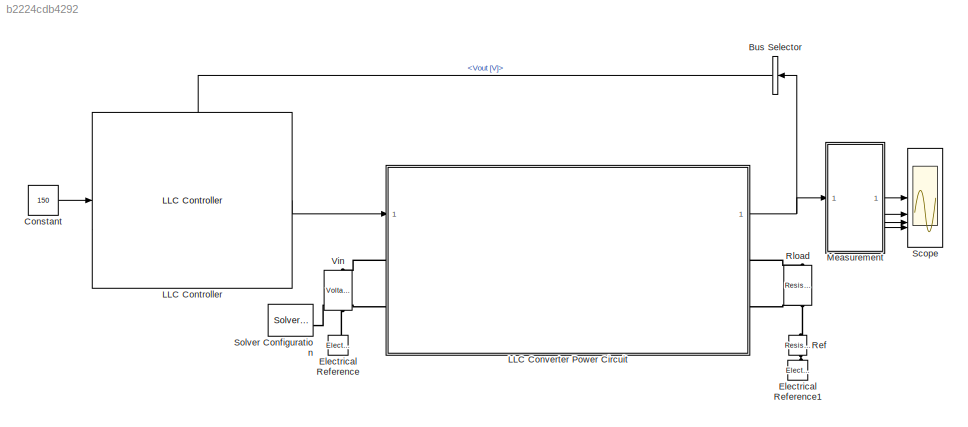
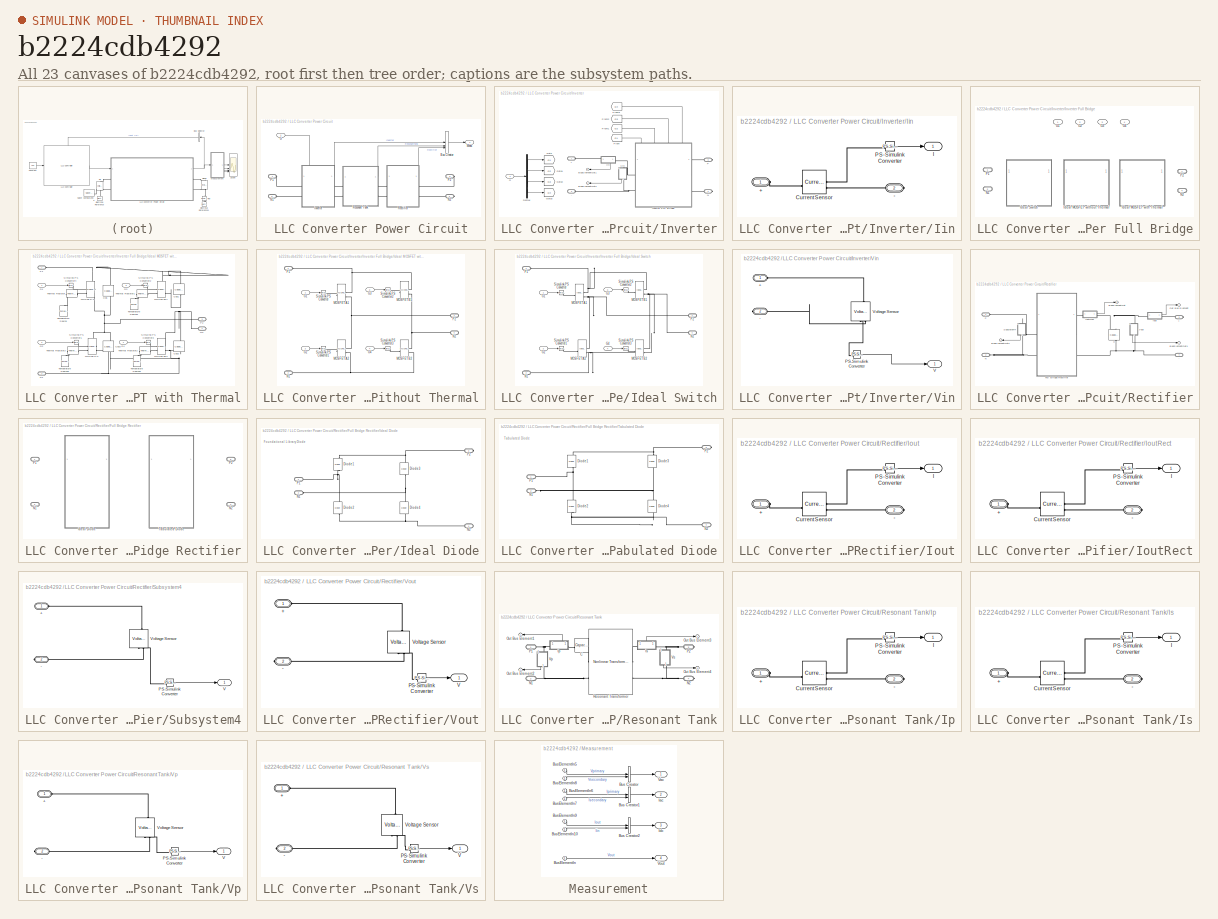
[diagram: thumbnail index - all 23 canvases of the model, root first then tree order]
MODEL slx_b2224cdb4292
KIND model
CONFIG AbsTol = 1e-3
CONFIG EnableMultiTasking = off
CONFIG FixedStep = Ts
CONFIG MaxStep = auto
CONFIG MinStep = auto
CONFIG PreLoadFcn = % Parameterize the model\n\nif ~exist('LLCDesign', 'var')\nLLCConverterDefaultInputParameters;\nend\n
CONFIG RelTol = 1e-3
CONFIG SampleTimeConstraint = Unconstrained
CONFIG SolverName = VariableStepAuto
CONFIG StartTime = 0.0
CONFIG StopTime = simulationTime
BLOCK [BusSelector] Bus Selector
  NameLocation = top
  OutputSignals = Rectifier.Vout [V]
BLOCK [Constant] Constant
  Value = 150
BLOCK [Reference] Electrical Reference  REF=fl_lib/Electrical/Electrical Elements/Electrical Reference
  NameLocation = right
  SourceBlock = fl_lib/Electrical/Electrical Elements/Electrical Reference
  SourceType = Electrical Reference
BLOCK [Reference] Electrical Reference1  REF=fl_lib/Electrical/Electrical Elements/Electrical Reference
  NameLocation = right
  SourceBlock = fl_lib/Electrical/Electrical Elements/Electrical Reference
  SourceType = Electrical Reference
BLOCK [Reference] LLC Controller  REF=LLCConverterLibrary/LLC Controller
  SourceBlock = LLCConverterLibrary/LLC Controller
  SourceType = LLC Resonant Converter Voltage Controller
BLOCK [SubSystem] LLC Converter Power Circuit
  CopyFcn = set_param(gcbh,"LinkStatus","none");
BLOCK [BusCreator] LLC Converter Power Circuit/Bus Creator
  DisplayOption = bar
  InheritFromInputs = on
  Inputs = 3
BLOCK [Inport] LLC Converter Power Circuit/G
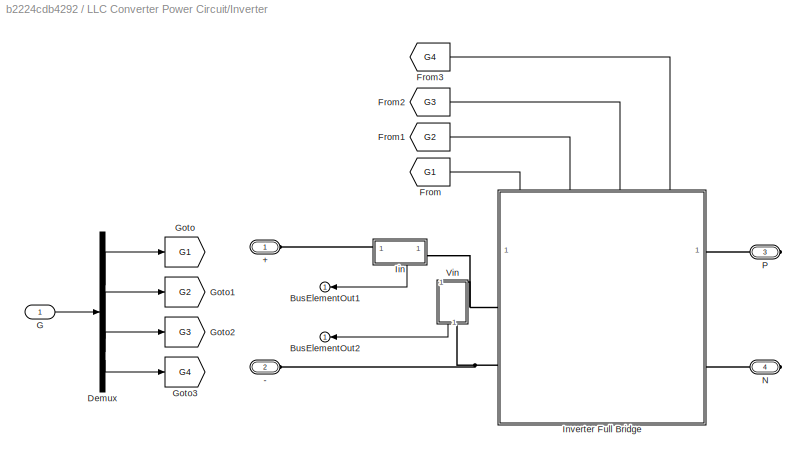
BLOCK [SubSystem] LLC Converter Power Circuit/Inverter
  PortSchema = {"entries":[{"content":{"sides":[{"content":{"connectorIds":["LConn1","LConn2"]},"type":"ConnectorPlacement.EquallySpacedRectSide","uuid":"5f98eff0-54e4-47a8-aeeb-0279cba14f26"},{"content":{"connectorIds":["RConn1","RConn2"],"side":"RIGHT"},"type":"ConnectorPlacement.EquallySpacedRectSide","uuid":"71acbbb6-1fc8-426c-b389-5d494eb18bfd"},{"content":{"connectorIds":["In1","Out1"],"side":"TOP"},"type"...<+275ch>
BLOCK [PMIOPort] LLC Converter Power Circuit/Inverter/+
  NameLocation = top
  Side = Left
BLOCK [PMIOPort] LLC Converter Power Circuit/Inverter/-
  NameLocation = top
  Port = 2
  Side = Left
BLOCK [Outport] LLC Converter Power Circuit/Inverter/BusElementOut1
  NameLocation = top
BLOCK [Outport] LLC Converter Power Circuit/Inverter/BusElementOut2
  NameLocation = top
BLOCK [Demux] LLC Converter Power Circuit/Inverter/Demux
BLOCK [From] LLC Converter Power Circuit/Inverter/From
  GotoTag = G1
BLOCK [From] LLC Converter Power Circuit/Inverter/From1
  GotoTag = G2
BLOCK [From] LLC Converter Power Circuit/Inverter/From2
  GotoTag = G3
BLOCK [From] LLC Converter Power Circuit/Inverter/From3
  GotoTag = G4
BLOCK [Inport] LLC Converter Power Circuit/Inverter/G
BLOCK [Goto] LLC Converter Power Circuit/Inverter/Goto
  GotoTag = G1
BLOCK [Goto] LLC Converter Power Circuit/Inverter/Goto1
  GotoTag = G2
BLOCK [Goto] LLC Converter Power Circuit/Inverter/Goto2
  GotoTag = G3
BLOCK [Goto] LLC Converter Power Circuit/Inverter/Goto3
  GotoTag = G4
BLOCK [SubSystem] LLC Converter Power Circuit/Inverter/Iin
  PortSchema = {"entries":[{"content":{"sides":[{"content":{"connectorIds":["LConn1","Out1"]},"type":"ConnectorPlacement.EquallySpacedRectSide","uuid":"e749c2ff-fd60-426f-a769-b61a7dfe80d2"},{"content":{"connectorIds":["RConn1"],"side":"RIGHT"},"type":"ConnectorPlacement.EquallySpacedRectSide","uuid":"f3bb02bd-f8d2-4326-b68c-6f969fa4ac22"},{"content":{"side":"TOP"},"type":"ConnectorPlacement.EquallySpacedRectSid...<+234ch>
BLOCK [PMIOPort] LLC Converter Power Circuit/Inverter/Iin/+
  Side = Left
BLOCK [PMIOPort] LLC Converter Power Circuit/Inverter/Iin/-
  Port = 2
  Side = Right
BLOCK [Reference] LLC Converter Power Circuit/Inverter/Iin/Current Sensor  REF=fl_lib/Electrical/Electrical Sensors/Current Sensor
  SourceBlock = fl_lib/Electrical/Electrical Sensors/Current Sensor
  SourceType = Current Sensor
BLOCK [Outport] LLC Converter Power Circuit/Inverter/Iin/I
BLOCK [Reference] LLC Converter Power Circuit/Inverter/Iin/PS-Simulink Converter  REF=nesl_utility/PS-Simulink
Converter
  SourceBlock = nesl_utility/PS-Simulink\nConverter
  SourceType = PS-Simulink\nConverter
BLOCK [SubSystem] LLC Converter Power Circuit/Inverter/Inverter Full Bridge
  LabelModeActiveChoice = IdealSwitch
  PortSchema = {"entries":[{"content":{"sides":[{"content":{"connectorIds":["LConn1","LConn2"]},"type":"ConnectorPlacement.EquallySpacedRectSide","uuid":"27c41940-d662-4779-afdd-48b642f77411"},{"content":{"connectorIds":["RConn1","RConn2"],"side":"RIGHT"},"type":"ConnectorPlacement.EquallySpacedRectSide","uuid":"b0072b01-add1-4b0f-b94e-e1b6c9886b0e"},{"content":{"connectorIds":["In1","In2","In3","In4"],"side":"T...<+412ch>  <repeated x4 — deduplicated; at blocks: Inverter Full Bridge, Ideal MOSFET with Thermal, Ideal MOSFET without Thermal, Ideal Switch>
  Variant = on
  VariantControlMode = label
BLOCK [Inport] LLC Converter Power Circuit/Inverter/Inverter Full Bridge/G1
BLOCK [Inport] LLC Converter Power Circuit/Inverter/Inverter Full Bridge/G2
  Port = 2
BLOCK [Inport] LLC Converter Power Circuit/Inverter/Inverter Full Bridge/G3
  Port = 3
BLOCK [Inport] LLC Converter Power Circuit/Inverter/Inverter Full Bridge/G4
  Port = 4
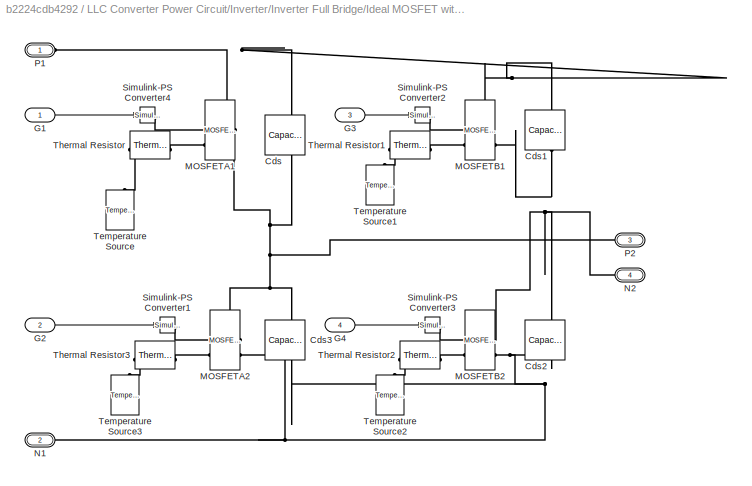
BLOCK [SubSystem] LLC Converter Power Circuit/Inverter/Inverter Full Bridge/Ideal MOSFET with Thermal
  VariantControl = IdealMOSFETwithThermal
BLOCK [Reference] LLC Converter Power Circuit/Inverter/Inverter Full Bridge/Ideal MOSFET with Thermal/Cds  REF=fl_lib/Electrical/Electrical Elements/Capacitor
  NameLocation = left
  SourceBlock = fl_lib/Electrical/Electrical Elements/Capacitor
  SourceType = Capacitor
BLOCK [Reference] LLC Converter Power Circuit/Inverter/Inverter Full Bridge/Ideal MOSFET with Thermal/Cds1  REF=fl_lib/Electrical/Electrical Elements/Capacitor
  NameLocation = left
  SourceBlock = fl_lib/Electrical/Electrical Elements/Capacitor
  SourceType = Capacitor
BLOCK [Reference] LLC Converter Power Circuit/Inverter/Inverter Full Bridge/Ideal MOSFET with Thermal/Cds2  REF=fl_lib/Electrical/Electrical Elements/Capacitor
  NameLocation = left
  SourceBlock = fl_lib/Electrical/Electrical Elements/Capacitor
  SourceType = Capacitor
BLOCK [Reference] LLC Converter Power Circuit/Inverter/Inverter Full Bridge/Ideal MOSFET with Thermal/Cds3  REF=fl_lib/Electrical/Electrical Elements/Capacitor
  NameLocation = left
  SourceBlock = fl_lib/Electrical/Electrical Elements/Capacitor
  SourceType = Capacitor
BLOCK [Inport] LLC Converter Power Circuit/Inverter/Inverter Full Bridge/Ideal MOSFET with Thermal/G1
BLOCK [Inport] LLC Converter Power Circuit/Inverter/Inverter Full Bridge/Ideal MOSFET with Thermal/G2
  Port = 2
BLOCK [Inport] LLC Converter Power Circuit/Inverter/Inverter Full Bridge/Ideal MOSFET with Thermal/G3
  Port = 3
BLOCK [Inport] LLC Converter Power Circuit/Inverter/Inverter Full Bridge/Ideal MOSFET with Thermal/G4
  Port = 4
BLOCK [Reference] LLC Converter Power Circuit/Inverter/Inverter Full Bridge/Ideal MOSFET with Thermal/MOSFETA1  REF=ee_lib/Semiconductors &
Converters/MOSFET
(Ideal,
Switching)
  AttributesFormatString = STMicroelectronics:SCTH35N65G2V-7
  SourceBlock = ee_lib/Semiconductors &\nConverters/MOSFET\n(Ideal,\nSwitching)
  SourceType = MOSFET\n(Ideal,\nSwitching)
BLOCK [Reference] LLC Converter Power Circuit/Inverter/Inverter Full Bridge/Ideal MOSFET with Thermal/MOSFETA2  REF=ee_lib/Semiconductors &
Converters/MOSFET
(Ideal,
Switching)
  AttributesFormatString = STMicroelectronics:SCTH35N65G2V-7
  SourceBlock = ee_lib/Semiconductors &\nConverters/MOSFET\n(Ideal,\nSwitching)
  SourceType = MOSFET\n(Ideal,\nSwitching)
BLOCK [Reference] LLC Converter Power Circuit/Inverter/Inverter Full Bridge/Ideal MOSFET with Thermal/MOSFETB1  REF=ee_lib/Semiconductors &
Converters/MOSFET
(Ideal,
Switching)
  AttributesFormatString = STMicroelectronics:SCTH35N65G2V-7
  SourceBlock = ee_lib/Semiconductors &\nConverters/MOSFET\n(Ideal,\nSwitching)
  SourceType = MOSFET\n(Ideal,\nSwitching)
BLOCK [Reference] LLC Converter Power Circuit/Inverter/Inverter Full Bridge/Ideal MOSFET with Thermal/MOSFETB2  REF=ee_lib/Semiconductors &
Converters/MOSFET
(Ideal,
Switching)
  AttributesFormatString = STMicroelectronics:SCTH35N65G2V-7
  SourceBlock = ee_lib/Semiconductors &\nConverters/MOSFET\n(Ideal,\nSwitching)
  SourceType = MOSFET\n(Ideal,\nSwitching)
BLOCK [PMIOPort] LLC Converter Power Circuit/Inverter/Inverter Full Bridge/Ideal MOSFET with Thermal/N1
  Port = 2
  Side = Left
BLOCK [PMIOPort] LLC Converter Power Circuit/Inverter/Inverter Full Bridge/Ideal MOSFET with Thermal/N2
  Port = 4
  Side = Right
BLOCK [PMIOPort] LLC Converter Power Circuit/Inverter/Inverter Full Bridge/Ideal MOSFET with Thermal/P1
  Side = Left
BLOCK [PMIOPort] LLC Converter Power Circuit/Inverter/Inverter Full Bridge/Ideal MOSFET with Thermal/P2
  Port = 3
  Side = Right
BLOCK [Reference] LLC Converter Power Circuit/Inverter/Inverter Full Bridge/Ideal MOSFET with Thermal/Simulink-PS Converter1  REF=nesl_utility/Simulink-PS
Converter
  SourceBlock = nesl_utility/Simulink-PS\nConverter
  SourceType = Simulink-PS\nConverter
BLOCK [Reference] LLC Converter Power Circuit/Inverter/Inverter Full Bridge/Ideal MOSFET with Thermal/Simulink-PS Converter2  REF=nesl_utility/Simulink-PS
Converter
  SourceBlock = nesl_utility/Simulink-PS\nConverter
  SourceType = Simulink-PS\nConverter
BLOCK [Reference] LLC Converter Power Circuit/Inverter/Inverter Full Bridge/Ideal MOSFET with Thermal/Simulink-PS Converter3  REF=nesl_utility/Simulink-PS
Converter
  SourceBlock = nesl_utility/Simulink-PS\nConverter
  SourceType = Simulink-PS\nConverter
BLOCK [Reference] LLC Converter Power Circuit/Inverter/Inverter Full Bridge/Ideal MOSFET with Thermal/Simulink-PS Converter4  REF=nesl_utility/Simulink-PS
Converter
  SourceBlock = nesl_utility/Simulink-PS\nConverter
  SourceType = Simulink-PS\nConverter
BLOCK [Reference] LLC Converter Power Circuit/Inverter/Inverter Full Bridge/Ideal MOSFET with Thermal/Temperature Source  REF=fl_lib/Thermal/Thermal Sources/Temperature Source
  NameLocation = right
  SourceBlock = fl_lib/Thermal/Thermal Sources/Temperature Source
  SourceType = Temperature Source
BLOCK [Reference] LLC Converter Power Circuit/Inverter/Inverter Full Bridge/Ideal MOSFET with Thermal/Temperature Source1  REF=fl_lib/Thermal/Thermal Sources/Temperature Source
  NameLocation = right
  SourceBlock = fl_lib/Thermal/Thermal Sources/Temperature Source
  SourceType = Temperature Source
BLOCK [Reference] LLC Converter Power Circuit/Inverter/Inverter Full Bridge/Ideal MOSFET with Thermal/Temperature Source2  REF=fl_lib/Thermal/Thermal Sources/Temperature Source
  NameLocation = right
  SourceBlock = fl_lib/Thermal/Thermal Sources/Temperature Source
  SourceType = Temperature Source
BLOCK [Reference] LLC Converter Power Circuit/Inverter/Inverter Full Bridge/Ideal MOSFET with Thermal/Temperature Source3  REF=fl_lib/Thermal/Thermal Sources/Temperature Source
  NameLocation = right
  SourceBlock = fl_lib/Thermal/Thermal Sources/Temperature Source
  SourceType = Temperature Source
BLOCK [Reference] LLC Converter Power Circuit/Inverter/Inverter Full Bridge/Ideal MOSFET with Thermal/Thermal Resistor  REF=ee_lib/Passive/Thermal/Thermal Resistor
  SourceBlock = ee_lib/Passive/Thermal/Thermal Resistor
  SourceType = Thermal Resistor
BLOCK [Reference] LLC Converter Power Circuit/Inverter/Inverter Full Bridge/Ideal MOSFET with Thermal/Thermal Resistor1  REF=ee_lib/Passive/Thermal/Thermal Resistor
  SourceBlock = ee_lib/Passive/Thermal/Thermal Resistor
  SourceType = Thermal Resistor
BLOCK [Reference] LLC Converter Power Circuit/Inverter/Inverter Full Bridge/Ideal MOSFET with Thermal/Thermal Resistor2  REF=ee_lib/Passive/Thermal/Thermal Resistor
  SourceBlock = ee_lib/Passive/Thermal/Thermal Resistor
  SourceType = Thermal Resistor
BLOCK [Reference] LLC Converter Power Circuit/Inverter/Inverter Full Bridge/Ideal MOSFET with Thermal/Thermal Resistor3  REF=ee_lib/Passive/Thermal/Thermal Resistor
  SourceBlock = ee_lib/Passive/Thermal/Thermal Resistor
  SourceType = Thermal Resistor
BLOCK [SubSystem] LLC Converter Power Circuit/Inverter/Inverter Full Bridge/Ideal MOSFET without Thermal
  VariantControl = IdealMOSFETwithoutThermal
BLOCK [Inport] LLC Converter Power Circuit/Inverter/Inverter Full Bridge/Ideal MOSFET without Thermal/G1
BLOCK [Inport] LLC Converter Power Circuit/Inverter/Inverter Full Bridge/Ideal MOSFET without Thermal/G2
  Port = 2
BLOCK [Inport] LLC Converter Power Circuit/Inverter/Inverter Full Bridge/Ideal MOSFET without Thermal/G3
  Port = 3
BLOCK [Inport] LLC Converter Power Circuit/Inverter/Inverter Full Bridge/Ideal MOSFET without Thermal/G4
  Port = 4
BLOCK [Reference] LLC Converter Power Circuit/Inverter/Inverter Full Bridge/Ideal MOSFET without Thermal/MOSFETA1  REF=ee_lib/Semiconductors &
Converters/MOSFET
(Ideal,
Switching)
  SourceBlock = ee_lib/Semiconductors &\nConverters/MOSFET\n(Ideal,\nSwitching)
  SourceType = MOSFET\n(Ideal,\nSwitching)
BLOCK [Reference] LLC Converter Power Circuit/Inverter/Inverter Full Bridge/Ideal MOSFET without Thermal/MOSFETA2  REF=ee_lib/Semiconductors &
Converters/MOSFET
(Ideal,
Switching)
  SourceBlock = ee_lib/Semiconductors &\nConverters/MOSFET\n(Ideal,\nSwitching)
  SourceType = MOSFET\n(Ideal,\nSwitching)
BLOCK [Reference] LLC Converter Power Circuit/Inverter/Inverter Full Bridge/Ideal MOSFET without Thermal/MOSFETB1  REF=ee_lib/Semiconductors &
Converters/MOSFET
(Ideal,
Switching)
  SourceBlock = ee_lib/Semiconductors &\nConverters/MOSFET\n(Ideal,\nSwitching)
  SourceType = MOSFET\n(Ideal,\nSwitching)
BLOCK [Reference] LLC Converter Power Circuit/Inverter/Inverter Full Bridge/Ideal MOSFET without Thermal/MOSFETB2  REF=ee_lib/Semiconductors &
Converters/MOSFET
(Ideal,
Switching)
  SourceBlock = ee_lib/Semiconductors &\nConverters/MOSFET\n(Ideal,\nSwitching)
  SourceType = MOSFET\n(Ideal,\nSwitching)
BLOCK [PMIOPort] LLC Converter Power Circuit/Inverter/Inverter Full Bridge/Ideal MOSFET without Thermal/N1
  Port = 2
  Side = Left
BLOCK [PMIOPort] LLC Converter Power Circuit/Inverter/Inverter Full Bridge/Ideal MOSFET without Thermal/N2
  Port = 4
  Side = Right
BLOCK [PMIOPort] LLC Converter Power Circuit/Inverter/Inverter Full Bridge/Ideal MOSFET without Thermal/P1
  Side = Left
BLOCK [PMIOPort] LLC Converter Power Circuit/Inverter/Inverter Full Bridge/Ideal MOSFET without Thermal/P2
  Port = 3
  Side = Right
BLOCK [Reference] LLC Converter Power Circuit/Inverter/Inverter Full Bridge/Ideal MOSFET without Thermal/Simulink-PS Converter  REF=nesl_utility/Simulink-PS
Converter
  SourceBlock = nesl_utility/Simulink-PS\nConverter
  SourceType = Simulink-PS\nConverter
BLOCK [Reference] LLC Converter Power Circuit/Inverter/Inverter Full Bridge/Ideal MOSFET without Thermal/Simulink-PS Converter1  REF=nesl_utility/Simulink-PS
Converter
  SourceBlock = nesl_utility/Simulink-PS\nConverter
  SourceType = Simulink-PS\nConverter
BLOCK [Reference] LLC Converter Power Circuit/Inverter/Inverter Full Bridge/Ideal MOSFET without Thermal/Simulink-PS Converter2  REF=nesl_utility/Simulink-PS
Converter
  SourceBlock = nesl_utility/Simulink-PS\nConverter
  SourceType = Simulink-PS\nConverter
BLOCK [Reference] LLC Converter Power Circuit/Inverter/Inverter Full Bridge/Ideal MOSFET without Thermal/Simulink-PS Converter3  REF=nesl_utility/Simulink-PS
Converter
  SourceBlock = nesl_utility/Simulink-PS\nConverter
  SourceType = Simulink-PS\nConverter
BLOCK [SubSystem] LLC Converter Power Circuit/Inverter/Inverter Full Bridge/Ideal Switch
  VariantControl = IdealSwitch
BLOCK [Inport] LLC Converter Power Circuit/Inverter/Inverter Full Bridge/Ideal Switch/G1
BLOCK [Inport] LLC Converter Power Circuit/Inverter/Inverter Full Bridge/Ideal Switch/G2
  Port = 2
BLOCK [Inport] LLC Converter Power Circuit/Inverter/Inverter Full Bridge/Ideal Switch/G3
  Port = 3
BLOCK [Inport] LLC Converter Power Circuit/Inverter/Inverter Full Bridge/Ideal Switch/G4
  Port = 4
BLOCK [Reference] LLC Converter Power Circuit/Inverter/Inverter Full Bridge/Ideal Switch/MOSFETA1  REF=ee_lib/Semiconductors &
Converters/Ideal Semiconductor
Switch
  SourceBlock = ee_lib/Semiconductors &\nConverters/Ideal Semiconductor\nSwitch
  SourceType = Ideal Semiconductor\nSwitch
BLOCK [Reference] LLC Converter Power Circuit/Inverter/Inverter Full Bridge/Ideal Switch/MOSFETA2  REF=ee_lib/Semiconductors &
Converters/Ideal Semiconductor
Switch
  SourceBlock = ee_lib/Semiconductors &\nConverters/Ideal Semiconductor\nSwitch
  SourceType = Ideal Semiconductor\nSwitch
BLOCK [Reference] LLC Converter Power Circuit/Inverter/Inverter Full Bridge/Ideal Switch/MOSFETB1  REF=ee_lib/Semiconductors &
Converters/Ideal Semiconductor
Switch
  SourceBlock = ee_lib/Semiconductors &\nConverters/Ideal Semiconductor\nSwitch
  SourceType = Ideal Semiconductor\nSwitch
BLOCK [Reference] LLC Converter Power Circuit/Inverter/Inverter Full Bridge/Ideal Switch/MOSFETB2  REF=ee_lib/Semiconductors &
Converters/Ideal Semiconductor
Switch
  SourceBlock = ee_lib/Semiconductors &\nConverters/Ideal Semiconductor\nSwitch
  SourceType = Ideal Semiconductor\nSwitch
BLOCK [PMIOPort] LLC Converter Power Circuit/Inverter/Inverter Full Bridge/Ideal Switch/N1
  Port = 2
  Side = Left
BLOCK [PMIOPort] LLC Converter Power Circuit/Inverter/Inverter Full Bridge/Ideal Switch/N2
  Port = 4
  Side = Right
BLOCK [PMIOPort] LLC Converter Power Circuit/Inverter/Inverter Full Bridge/Ideal Switch/P1
  Side = Left
BLOCK [PMIOPort] LLC Converter Power Circuit/Inverter/Inverter Full Bridge/Ideal Switch/P2
  Port = 3
  Side = Right
BLOCK [Reference] LLC Converter Power Circuit/Inverter/Inverter Full Bridge/Ideal Switch/Simulink-PS Converter  REF=nesl_utility/Simulink-PS
Converter
  SourceBlock = nesl_utility/Simulink-PS\nConverter
  SourceType = Simulink-PS\nConverter
BLOCK [Reference] LLC Converter Power Circuit/Inverter/Inverter Full Bridge/Ideal Switch/Simulink-PS Converter1  REF=nesl_utility/Simulink-PS
Converter
  SourceBlock = nesl_utility/Simulink-PS\nConverter
  SourceType = Simulink-PS\nConverter
BLOCK [Reference] LLC Converter Power Circuit/Inverter/Inverter Full Bridge/Ideal Switch/Simulink-PS Converter2  REF=nesl_utility/Simulink-PS
Converter
  SourceBlock = nesl_utility/Simulink-PS\nConverter
  SourceType = Simulink-PS\nConverter
BLOCK [Reference] LLC Converter Power Circuit/Inverter/Inverter Full Bridge/Ideal Switch/Simulink-PS Converter3  REF=nesl_utility/Simulink-PS
Converter
  SourceBlock = nesl_utility/Simulink-PS\nConverter
  SourceType = Simulink-PS\nConverter
BLOCK [PMIOPort] LLC Converter Power Circuit/Inverter/Inverter Full Bridge/N1
  Port = 2
  Side = Left
BLOCK [PMIOPort] LLC Converter Power Circuit/Inverter/Inverter Full Bridge/N2
  Port = 4
  Side = Right
BLOCK [PMIOPort] LLC Converter Power Circuit/Inverter/Inverter Full Bridge/P1
  Side = Left
BLOCK [PMIOPort] LLC Converter Power Circuit/Inverter/Inverter Full Bridge/P2
  Port = 3
  Side = Right
BLOCK [PMIOPort] LLC Converter Power Circuit/Inverter/N
  Port = 4
  Side = Right
BLOCK [PMIOPort] LLC Converter Power Circuit/Inverter/P
  Port = 3
  Side = Right
BLOCK [SubSystem] LLC Converter Power Circuit/Inverter/Vin
  NameLocation = left
BLOCK [PMIOPort] LLC Converter Power Circuit/Inverter/Vin/+
  Side = Left
BLOCK [PMIOPort] LLC Converter Power Circuit/Inverter/Vin/-
  Port = 2
  Side = Right
BLOCK [Reference] LLC Converter Power Circuit/Inverter/Vin/PS-Simulink Converter  REF=nesl_utility/PS-Simulink
Converter
  SourceBlock = nesl_utility/PS-Simulink\nConverter
  SourceType = PS-Simulink\nConverter
BLOCK [Outport] LLC Converter Power Circuit/Inverter/Vin/V
BLOCK [Reference] LLC Converter Power Circuit/Inverter/Vin/Voltage Sensor  REF=fl_lib/Electrical/Electrical Sensors/Voltage Sensor
  NameLocation = right
  SourceBlock = fl_lib/Electrical/Electrical Sensors/Voltage Sensor
  SourceType = Voltage Sensor
BLOCK [Outport] LLC Converter Power Circuit/Meas
BLOCK [PMIOPort] LLC Converter Power Circuit/N1
  Port = 3
  Side = Left
BLOCK [PMIOPort] LLC Converter Power Circuit/N2
  Port = 4
  Side = Right
BLOCK [PMIOPort] LLC Converter Power Circuit/P1
  Side = Left
BLOCK [PMIOPort] LLC Converter Power Circuit/P2
  Port = 2
  Side = Right
BLOCK [SubSystem] LLC Converter Power Circuit/Rectifier
  PortSchema = {"entries":[{"content":{"sides":[{"content":{"connectorIds":["LConn1","LConn2"]},"type":"ConnectorPlacement.EquallySpacedRectSide","uuid":"4786b3cc-2245-4c72-a50b-9c63e4ad3d8a"},{"content":{"connectorIds":["RConn1","RConn2"],"side":"RIGHT"},"type":"ConnectorPlacement.EquallySpacedRectSide","uuid":"250a01d0-bf95-4e01-bf69-d866bcf3b7bd"},{"content":{"connectorIds":["Out1"],"side":"TOP"},"type":"Conn...<+269ch>
BLOCK [PMIOPort] LLC Converter Power Circuit/Rectifier/+
  Port = 3
  Side = Right
BLOCK [PMIOPort] LLC Converter Power Circuit/Rectifier/-
  Port = 4
  Side = Right
BLOCK [Outport] LLC Converter Power Circuit/Rectifier/BusElementOut
BLOCK [Outport] LLC Converter Power Circuit/Rectifier/BusElementOut1
BLOCK [Outport] LLC Converter Power Circuit/Rectifier/BusElementOut2
  NameLocation = top
BLOCK [Reference] LLC Converter Power Circuit/Rectifier/C  REF=fl_lib/Electrical/Electrical Elements/Capacitor
  NameLocation = left
  SourceBlock = fl_lib/Electrical/Electrical Elements/Capacitor
  SourceType = Capacitor
BLOCK [SubSystem] LLC Converter Power Circuit/Rectifier/Full Bridge Rectifier
  LabelModeActiveChoice = IdealDiode
  Variant = on
  VariantControlMode = label
BLOCK [SubSystem] LLC Converter Power Circuit/Rectifier/Full Bridge Rectifier/Ideal Diode
  VariantControl = IdealDiode
BLOCK [Reference] LLC Converter Power Circuit/Rectifier/Full Bridge Rectifier/Ideal Diode/Diode1  REF=fl_lib/Electrical/Electrical Elements/Diode
  NameLocation = left
  SourceBlock = fl_lib/Electrical/Electrical Elements/Diode
  SourceType = Diode
BLOCK [Reference] LLC Converter Power Circuit/Rectifier/Full Bridge Rectifier/Ideal Diode/Diode2  REF=fl_lib/Electrical/Electrical Elements/Diode
  NameLocation = left
  SourceBlock = fl_lib/Electrical/Electrical Elements/Diode
  SourceType = Diode
BLOCK [Reference] LLC Converter Power Circuit/Rectifier/Full Bridge Rectifier/Ideal Diode/Diode3  REF=fl_lib/Electrical/Electrical Elements/Diode
  NameLocation = left
  SourceBlock = fl_lib/Electrical/Electrical Elements/Diode
  SourceType = Diode
BLOCK [Reference] LLC Converter Power Circuit/Rectifier/Full Bridge Rectifier/Ideal Diode/Diode4  REF=fl_lib/Electrical/Electrical Elements/Diode
  NameLocation = left
  SourceBlock = fl_lib/Electrical/Electrical Elements/Diode
  SourceType = Diode
BLOCK [PMIOPort] LLC Converter Power Circuit/Rectifier/Full Bridge Rectifier/Ideal Diode/N1
  Port = 2
  Side = Left
BLOCK [PMIOPort] LLC Converter Power Circuit/Rectifier/Full Bridge Rectifier/Ideal Diode/N2
  Port = 4
  Side = Right
BLOCK [PMIOPort] LLC Converter Power Circuit/Rectifier/Full Bridge Rectifier/Ideal Diode/P1
  Side = Left
BLOCK [PMIOPort] LLC Converter Power Circuit/Rectifier/Full Bridge Rectifier/Ideal Diode/P2
  Port = 3
  Side = Right
BLOCK [PMIOPort] LLC Converter Power Circuit/Rectifier/Full Bridge Rectifier/N1
  Port = 2
  Side = Left
BLOCK [PMIOPort] LLC Converter Power Circuit/Rectifier/Full Bridge Rectifier/N2
  Port = 4
  Side = Right
BLOCK [PMIOPort] LLC Converter Power Circuit/Rectifier/Full Bridge Rectifier/P1
  Side = Left
BLOCK [PMIOPort] LLC Converter Power Circuit/Rectifier/Full Bridge Rectifier/P2
  Port = 3
  Side = Right
BLOCK [SubSystem] LLC Converter Power Circuit/Rectifier/Full Bridge Rectifier/Tabulated Diode
  VariantControl = TabulatedDiode
BLOCK [Reference] LLC Converter Power Circuit/Rectifier/Full Bridge Rectifier/Tabulated Diode/Diode1  REF=ee_lib/Semiconductors &
Converters/Diode
  AttributesFormatString = STMicroelectronics:STPSC20G12
  NameLocation = left
  SourceBlock = ee_lib/Semiconductors &\nConverters/Diode
  SourceType = Diode
BLOCK [Reference] LLC Converter Power Circuit/Rectifier/Full Bridge Rectifier/Tabulated Diode/Diode2  REF=ee_lib/Semiconductors &
Converters/Diode
  AttributesFormatString = STMicroelectronics:STPSC20G12
  NameLocation = left
  SourceBlock = ee_lib/Semiconductors &\nConverters/Diode
  SourceType = Diode
BLOCK [Reference] LLC Converter Power Circuit/Rectifier/Full Bridge Rectifier/Tabulated Diode/Diode3  REF=ee_lib/Semiconductors &
Converters/Diode
  AttributesFormatString = STMicroelectronics:STPSC20G12
  NameLocation = left
  SourceBlock = ee_lib/Semiconductors &\nConverters/Diode
  SourceType = Diode
BLOCK [Reference] LLC Converter Power Circuit/Rectifier/Full Bridge Rectifier/Tabulated Diode/Diode4  REF=ee_lib/Semiconductors &
Converters/Diode
  AttributesFormatString = STMicroelectronics:STPSC20G12
  NameLocation = left
  SourceBlock = ee_lib/Semiconductors &\nConverters/Diode
  SourceType = Diode
BLOCK [PMIOPort] LLC Converter Power Circuit/Rectifier/Full Bridge Rectifier/Tabulated Diode/N1
  Port = 2
  Side = Left
BLOCK [PMIOPort] LLC Converter Power Circuit/Rectifier/Full Bridge Rectifier/Tabulated Diode/N2
  Port = 4
  Side = Right
BLOCK [PMIOPort] LLC Converter Power Circuit/Rectifier/Full Bridge Rectifier/Tabulated Diode/P1
  Side = Left
BLOCK [PMIOPort] LLC Converter Power Circuit/Rectifier/Full Bridge Rectifier/Tabulated Diode/P2
  Port = 3
  Side = Right
BLOCK [SubSystem] LLC Converter Power Circuit/Rectifier/Iout
BLOCK [PMIOPort] LLC Converter Power Circuit/Rectifier/Iout/+
  Side = Left
BLOCK [PMIOPort] LLC Converter Power Circuit/Rectifier/Iout/-
  Port = 2
  Side = Right
BLOCK [Reference] LLC Converter Power Circuit/Rectifier/Iout/Current Sensor  REF=fl_lib/Electrical/Electrical Sensors/Current Sensor
  SourceBlock = fl_lib/Electrical/Electrical Sensors/Current Sensor
  SourceType = Current Sensor
BLOCK [Outport] LLC Converter Power Circuit/Rectifier/Iout/I
BLOCK [Reference] LLC Converter Power Circuit/Rectifier/Iout/PS-Simulink Converter  REF=nesl_utility/PS-Simulink
Converter
  SourceBlock = nesl_utility/PS-Simulink\nConverter
  SourceType = PS-Simulink\nConverter
BLOCK [SubSystem] LLC Converter Power Circuit/Rectifier/IoutRect
BLOCK [PMIOPort] LLC Converter Power Circuit/Rectifier/IoutRect/+
  Side = Left
BLOCK [PMIOPort] LLC Converter Power Circuit/Rectifier/IoutRect/-
  Port = 2
  Side = Right
BLOCK [Reference] LLC Converter Power Circuit/Rectifier/IoutRect/Current Sensor  REF=fl_lib/Electrical/Electrical Sensors/Current Sensor
  SourceBlock = fl_lib/Electrical/Electrical Sensors/Current Sensor
  SourceType = Current Sensor
BLOCK [Outport] LLC Converter Power Circuit/Rectifier/IoutRect/I
BLOCK [Reference] LLC Converter Power Circuit/Rectifier/IoutRect/PS-Simulink Converter  REF=nesl_utility/PS-Simulink
Converter
  SourceBlock = nesl_utility/PS-Simulink\nConverter
  SourceType = PS-Simulink\nConverter
BLOCK [PMIOPort] LLC Converter Power Circuit/Rectifier/N
  NameLocation = top
  Port = 2
  Side = Left
BLOCK [Outport] LLC Converter Power Circuit/Rectifier/Out Bus Element
BLOCK [PMIOPort] LLC Converter Power Circuit/Rectifier/P
  NameLocation = top
  Side = Left
BLOCK [SubSystem] LLC Converter Power Circuit/Rectifier/Subsystem4
  NameLocation = left
  PortSchema = {"entries":[{"content":{"sides":[{"content":{"connectorIds":["LConn1"]},"type":"ConnectorPlacement.EquallySpacedRectSide","uuid":"e749c2ff-fd60-426f-a769-b61a7dfe80d2"},{"content":{"connectorIds":["RConn1","Out1"],"side":"RIGHT"},"type":"ConnectorPlacement.EquallySpacedRectSide","uuid":"f3bb02bd-f8d2-4326-b68c-6f969fa4ac22"},{"content":{"side":"TOP"},"type":"ConnectorPlacement.EquallySpacedRectSid...<+234ch>  <repeated x3 — deduplicated; at blocks: Subsystem4, Vout, Is>
BLOCK [PMIOPort] LLC Converter Power Circuit/Rectifier/Subsystem4/+
  Side = Left
BLOCK [PMIOPort] LLC Converter Power Circuit/Rectifier/Subsystem4/-
  Port = 2
  Side = Right
BLOCK [Reference] LLC Converter Power Circuit/Rectifier/Subsystem4/PS-Simulink Converter  REF=nesl_utility/PS-Simulink
Converter
  SourceBlock = nesl_utility/PS-Simulink\nConverter
  SourceType = PS-Simulink\nConverter
BLOCK [Outport] LLC Converter Power Circuit/Rectifier/Subsystem4/V
BLOCK [Reference] LLC Converter Power Circuit/Rectifier/Subsystem4/Voltage Sensor  REF=fl_lib/Electrical/Electrical Sensors/Voltage Sensor
  NameLocation = right
  SourceBlock = fl_lib/Electrical/Electrical Sensors/Voltage Sensor
  SourceType = Voltage Sensor
BLOCK [SubSystem] LLC Converter Power Circuit/Rectifier/Vout
  NameLocation = left
BLOCK [PMIOPort] LLC Converter Power Circuit/Rectifier/Vout/+
  Side = Left
BLOCK [PMIOPort] LLC Converter Power Circuit/Rectifier/Vout/-
  Port = 2
  Side = Right
BLOCK [Reference] LLC Converter Power Circuit/Rectifier/Vout/PS-Simulink Converter  REF=nesl_utility/PS-Simulink
Converter
  SourceBlock = nesl_utility/PS-Simulink\nConverter
  SourceType = PS-Simulink\nConverter
BLOCK [Outport] LLC Converter Power Circuit/Rectifier/Vout/V
BLOCK [Reference] LLC Converter Power Circuit/Rectifier/Vout/Voltage Sensor  REF=fl_lib/Electrical/Electrical Sensors/Voltage Sensor
  NameLocation = right
  SourceBlock = fl_lib/Electrical/Electrical Sensors/Voltage Sensor
  SourceType = Voltage Sensor
BLOCK [SubSystem] LLC Converter Power Circuit/Resonant Tank
  PortSchema = {"entries":[{"content":{"sides":[{"content":{"connectorIds":["LConn1","LConn2"]},"type":"ConnectorPlacement.EquallySpacedRectSide","uuid":"d505f362-3b8e-4dee-9b5b-731d75550efb"},{"content":{"connectorIds":["RConn1","RConn2"],"side":"RIGHT"},"type":"ConnectorPlacement.EquallySpacedRectSide","uuid":"66ab4b84-9b7a-404b-b3f6-3ac1c371ea42"},{"content":{"connectorIds":["Out1"],"side":"TOP"},"type":"Conn...<+269ch>
BLOCK [Reference] LLC Converter Power Circuit/Resonant Tank/C  REF=fl_lib/Electrical/Electrical Elements/Capacitor
  SourceBlock = fl_lib/Electrical/Electrical Elements/Capacitor
  SourceType = Capacitor
BLOCK [SubSystem] LLC Converter Power Circuit/Resonant Tank/Ip
  PortSchema = {"entries":[{"content":{"sides":[{"content":{"connectorIds":["Out1","LConn1"]},"type":"ConnectorPlacement.EquallySpacedRectSide","uuid":"e749c2ff-fd60-426f-a769-b61a7dfe80d2"},{"content":{"connectorIds":["RConn1"],"side":"RIGHT"},"type":"ConnectorPlacement.EquallySpacedRectSide","uuid":"f3bb02bd-f8d2-4326-b68c-6f969fa4ac22"},{"content":{"side":"TOP"},"type":"ConnectorPlacement.EquallySpacedRectSid...<+234ch>
BLOCK [PMIOPort] LLC Converter Power Circuit/Resonant Tank/Ip/+
  Side = Left
BLOCK [PMIOPort] LLC Converter Power Circuit/Resonant Tank/Ip/-
  Port = 2
  Side = Right
BLOCK [Reference] LLC Converter Power Circuit/Resonant Tank/Ip/Current Sensor  REF=fl_lib/Electrical/Electrical Sensors/Current Sensor
  SourceBlock = fl_lib/Electrical/Electrical Sensors/Current Sensor
  SourceType = Current Sensor
BLOCK [Outport] LLC Converter Power Circuit/Resonant Tank/Ip/I
BLOCK [Reference] LLC Converter Power Circuit/Resonant Tank/Ip/PS-Simulink Converter  REF=nesl_utility/PS-Simulink
Converter
  SourceBlock = nesl_utility/PS-Simulink\nConverter
  SourceType = PS-Simulink\nConverter
BLOCK [SubSystem] LLC Converter Power Circuit/Resonant Tank/Is
BLOCK [PMIOPort] LLC Converter Power Circuit/Resonant Tank/Is/+
  Side = Left
BLOCK [PMIOPort] LLC Converter Power Circuit/Resonant Tank/Is/-
  Port = 2
  Side = Right
BLOCK [Reference] LLC Converter Power Circuit/Resonant Tank/Is/Current Sensor  REF=fl_lib/Electrical/Electrical Sensors/Current Sensor
  SourceBlock = fl_lib/Electrical/Electrical Sensors/Current Sensor
  SourceType = Current Sensor
BLOCK [Outport] LLC Converter Power Circuit/Resonant Tank/Is/I
BLOCK [Reference] LLC Converter Power Circuit/Resonant Tank/Is/PS-Simulink Converter  REF=nesl_utility/PS-Simulink
Converter
  SourceBlock = nesl_utility/PS-Simulink\nConverter
  SourceType = PS-Simulink\nConverter
BLOCK [PMIOPort] LLC Converter Power Circuit/Resonant Tank/N1
  Port = 2
  Side = Left
BLOCK [PMIOPort] LLC Converter Power Circuit/Resonant Tank/N2
  Port = 4
  Side = Right
BLOCK [Outport] LLC Converter Power Circuit/Resonant Tank/Out Bus Element1
  NameLocation = top
BLOCK [Outport] LLC Converter Power Circuit/Resonant Tank/Out Bus Element2
  NameLocation = top
BLOCK [Outport] LLC Converter Power Circuit/Resonant Tank/Out Bus Element3
BLOCK [Outport] LLC Converter Power Circuit/Resonant Tank/Out Bus Element4
BLOCK [PMIOPort] LLC Converter Power Circuit/Resonant Tank/P1
  Side = Left
BLOCK [PMIOPort] LLC Converter Power Circuit/Resonant Tank/P2
  Port = 3
  Side = Right
BLOCK [Reference] LLC Converter Power Circuit/Resonant Tank/Resonant Transformer  REF=ee_lib/Passive/Transformers/Nonlinear
Transformer
  SourceBlock = ee_lib/Passive/Transformers/Nonlinear\nTransformer
  SourceType = Nonlinear\nTransformer
BLOCK [SubSystem] LLC Converter Power Circuit/Resonant Tank/Vp
  NameLocation = left
BLOCK [PMIOPort] LLC Converter Power Circuit/Resonant Tank/Vp/+
  Side = Left
BLOCK [PMIOPort] LLC Converter Power Circuit/Resonant Tank/Vp/-
  Port = 2
  Side = Right
BLOCK [Reference] LLC Converter Power Circuit/Resonant Tank/Vp/PS-Simulink Converter  REF=nesl_utility/PS-Simulink
Converter
  SourceBlock = nesl_utility/PS-Simulink\nConverter
  SourceType = PS-Simulink\nConverter
BLOCK [Outport] LLC Converter Power Circuit/Resonant Tank/Vp/V
BLOCK [Reference] LLC Converter Power Circuit/Resonant Tank/Vp/Voltage Sensor  REF=fl_lib/Electrical/Electrical Sensors/Voltage Sensor
  NameLocation = right
  SourceBlock = fl_lib/Electrical/Electrical Sensors/Voltage Sensor
  SourceType = Voltage Sensor
BLOCK [SubSystem] LLC Converter Power Circuit/Resonant Tank/Vs
  NameLocation = right
BLOCK [PMIOPort] LLC Converter Power Circuit/Resonant Tank/Vs/+
  Side = Left
BLOCK [PMIOPort] LLC Converter Power Circuit/Resonant Tank/Vs/-
  Port = 2
  Side = Right
BLOCK [Reference] LLC Converter Power Circuit/Resonant Tank/Vs/PS-Simulink Converter  REF=nesl_utility/PS-Simulink
Converter
  SourceBlock = nesl_utility/PS-Simulink\nConverter
  SourceType = PS-Simulink\nConverter
BLOCK [Outport] LLC Converter Power Circuit/Resonant Tank/Vs/V
BLOCK [Reference] LLC Converter Power Circuit/Resonant Tank/Vs/Voltage Sensor  REF=fl_lib/Electrical/Electrical Sensors/Voltage Sensor
  NameLocation = right
  SourceBlock = fl_lib/Electrical/Electrical Sensors/Voltage Sensor
  SourceType = Voltage Sensor
BLOCK [SubSystem] Measurement
BLOCK [BusCreator] Measurement/Bus Creator
  DisplayOption = bar
  InheritFromInputs = on
  Inputs = 2
BLOCK [BusCreator] Measurement/Bus Creator1
  DisplayOption = bar
  InheritFromInputs = on
  Inputs = 2
BLOCK [BusCreator] Measurement/Bus Creator2
  DisplayOption = bar
  InheritFromInputs = on
  Inputs = 2
BLOCK [Inport] Measurement/BusElementIn
BLOCK [Inport] Measurement/BusElementIn10
BLOCK [Inport] Measurement/BusElementIn5
BLOCK [Inport] Measurement/BusElementIn6
BLOCK [Inport] Measurement/BusElementIn7
BLOCK [Inport] Measurement/BusElementIn8
BLOCK [Inport] Measurement/BusElementIn9
BLOCK [Outport] Measurement/Iac
  Port = 2
BLOCK [Outport] Measurement/Idc
  Port = 3
BLOCK [Outport] Measurement/Vac
BLOCK [Outport] Measurement/Vout
  Port = 4
BLOCK [Reference] Ref  REF=fl_lib/Electrical/Electrical Elements/Resistor
  NameLocation = right
  SourceBlock = fl_lib/Electrical/Electrical Elements/Resistor
  SourceType = Resistor
BLOCK [Reference] Rload  REF=fl_lib/Electrical/Electrical Elements/Resistor
  NameLocation = right
  SourceBlock = fl_lib/Electrical/Electrical Elements/Resistor
  SourceType = Resistor
BLOCK [Scope] Scope
  ActiveDisplayYMaximum = 476.50401829301353
  ActiveDisplayYMinimum = -476.50352420936855
  DataLoggingVariableName = ScopeData1
  Floating = off
  GraphicalSettings = {"Style":{"BackgroundColor":[0.12941176470588237,0.12941176470588237,0.12941176470588237],"AxesColor":[0.07058823529411765,0.07058823529411765,0.07058823529411765],"LabelsColor":[0.8509803921568627,0.8509803921568627,0.8509803921568627],"PreserveColors":false,"Visible":[true,true,true,true,true,true,true],"LineStyle":["-","-","-","-","-","-","-"],"LineWidth":[1.5,1.5,1.5,1.5,1.5,1.5,1.5],"BarWidth...<+3888ch>
  LayoutDimensionsString = [2 2]
  MultipleDisplayCache = [{"MaxYLimMag":476.50401829301353,"MaxYLimReal":476.50401829301353,"MinYLimMag":0,"MinYLimReal":-476.50352420936855,"PlotAsMagnitudePhase":false,"ShowGrid":true,"ShowLegend":true,"Title":"Resonant Tank Voltages","YLabel":""},{"MaxYLimMag":149.74102711518071,"MaxYLimReal":142.27983987583633,"MinYLimMag":0,"MinYLimReal":-149.74102711518071,"PlotAsMagnitudePhase":false,"ShowGrid":true,"ShowLegend":tr...<+514ch>
  NumInputPorts = 4
  ScopeFrameLocation = window
  ShowLegend = on
  Title = Resonant Tank Voltages
  WasSavedAsWebScope = on
  WindowPosition = [1.000000,49.000000,2560.000000,1369.000000,]
BLOCK [Reference] Solver Configuration  REF=nesl_utility/Solver
Configuration
  SourceBlock = nesl_utility/Solver\nConfiguration
  SourceType = Solver\nConfiguration
BLOCK [Reference] Vin  REF=ee_lib/Sources/Voltage Source
  NameLocation = right
  SourceBlock = ee_lib/Sources/Voltage Source
  SourceType = Voltage Source
ANNOTATION LLC Converter Power Circuit/Rectifier/Full Bridge Rectifier/Ideal Diode: Foundational Library Diode
ANNOTATION LLC Converter Power Circuit/Rectifier/Full Bridge Rectifier/Tabulated Diode: Tabulated Diode
LINE Bus Selector:1 -> LLC Controller:2
LINE Constant:1 -> LLC Controller:1
LINE LLC Controller:1 -> LLC Converter Power Circuit:1
LINE LLC Converter Power Circuit/Bus Creator:1 -> LLC Converter Power Circuit/Meas:1
LINE LLC Converter Power Circuit/G:1 -> LLC Converter Power Circuit/Inverter:1
LINE LLC Converter Power Circuit/Inverter/Demux:1 -> LLC Converter Power Circuit/Inverter/Goto:1
LINE LLC Converter Power Circuit/Inverter/Demux:2 -> LLC Converter Power Circuit/Inverter/Goto1:1
LINE LLC Converter Power Circuit/Inverter/Demux:3 -> LLC Converter Power Circuit/Inverter/Goto2:1
LINE LLC Converter Power Circuit/Inverter/Demux:4 -> LLC Converter Power Circuit/Inverter/Goto3:1
LINE LLC Converter Power Circuit/Inverter/From1:1 -> LLC Converter Power Circuit/Inverter/Inverter Full Bridge:2
LINE LLC Converter Power Circuit/Inverter/From2:1 -> LLC Converter Power Circuit/Inverter/Inverter Full Bridge:3
LINE LLC Converter Power Circuit/Inverter/From3:1 -> LLC Converter Power Circuit/Inverter/Inverter Full Bridge:4
LINE LLC Converter Power Circuit/Inverter/From:1 -> LLC Converter Power Circuit/Inverter/Inverter Full Bridge:1
LINE LLC Converter Power Circuit/Inverter/G:1 -> LLC Converter Power Circuit/Inverter/Demux:1
LINE LLC Converter Power Circuit/Inverter/Iin/PS-Simulink Converter:1 -> LLC Converter Power Circuit/Inverter/Iin/I:1
LINE LLC Converter Power Circuit/Inverter/Iin:1 -> LLC Converter Power Circuit/Inverter/BusElementOut1:1
LINE LLC Converter Power Circuit/Inverter/Inverter Full Bridge/Ideal MOSFET with Thermal/G1:1 -> LLC Converter Power Circuit/Inverter/Inverter Full Bridge/Ideal MOSFET with Thermal/Simulink-PS Converter4:1
LINE LLC Converter Power Circuit/Inverter/Inverter Full Bridge/Ideal MOSFET with Thermal/G2:1 -> LLC Converter Power Circuit/Inverter/Inverter Full Bridge/Ideal MOSFET with Thermal/Simulink-PS Converter1:1
LINE LLC Converter Power Circuit/Inverter/Inverter Full Bridge/Ideal MOSFET with Thermal/G3:1 -> LLC Converter Power Circuit/Inverter/Inverter Full Bridge/Ideal MOSFET with Thermal/Simulink-PS Converter2:1
LINE LLC Converter Power Circuit/Inverter/Inverter Full Bridge/Ideal MOSFET with Thermal/G4:1 -> LLC Converter Power Circuit/Inverter/Inverter Full Bridge/Ideal MOSFET with Thermal/Simulink-PS Converter3:1
LINE LLC Converter Power Circuit/Inverter/Inverter Full Bridge/Ideal MOSFET without Thermal/G1:1 -> LLC Converter Power Circuit/Inverter/Inverter Full Bridge/Ideal MOSFET without Thermal/Simulink-PS Converter:1
LINE LLC Converter Power Circuit/Inverter/Inverter Full Bridge/Ideal MOSFET without Thermal/G2:1 -> LLC Converter Power Circuit/Inverter/Inverter Full Bridge/Ideal MOSFET without Thermal/Simulink-PS Converter1:1
LINE LLC Converter Power Circuit/Inverter/Inverter Full Bridge/Ideal MOSFET without Thermal/G3:1 -> LLC Converter Power Circuit/Inverter/Inverter Full Bridge/Ideal MOSFET without Thermal/Simulink-PS Converter2:1
LINE LLC Converter Power Circuit/Inverter/Inverter Full Bridge/Ideal MOSFET without Thermal/G4:1 -> LLC Converter Power Circuit/Inverter/Inverter Full Bridge/Ideal MOSFET without Thermal/Simulink-PS Converter3:1
LINE LLC Converter Power Circuit/Inverter/Inverter Full Bridge/Ideal Switch/G1:1 -> LLC Converter Power Circuit/Inverter/Inverter Full Bridge/Ideal Switch/Simulink-PS Converter:1
LINE LLC Converter Power Circuit/Inverter/Inverter Full Bridge/Ideal Switch/G2:1 -> LLC Converter Power Circuit/Inverter/Inverter Full Bridge/Ideal Switch/Simulink-PS Converter1:1
LINE LLC Converter Power Circuit/Inverter/Inverter Full Bridge/Ideal Switch/G3:1 -> LLC Converter Power Circuit/Inverter/Inverter Full Bridge/Ideal Switch/Simulink-PS Converter2:1
LINE LLC Converter Power Circuit/Inverter/Inverter Full Bridge/Ideal Switch/G4:1 -> LLC Converter Power Circuit/Inverter/Inverter Full Bridge/Ideal Switch/Simulink-PS Converter3:1
LINE LLC Converter Power Circuit/Inverter/Vin/PS-Simulink Converter:1 -> LLC Converter Power Circuit/Inverter/Vin/V:1
LINE LLC Converter Power Circuit/Inverter/Vin:1 -> LLC Converter Power Circuit/Inverter/BusElementOut2:1
LINE LLC Converter Power Circuit/Inverter:1 -> LLC Converter Power Circuit/Bus Creator:1
LINE LLC Converter Power Circuit/Rectifier/Iout/PS-Simulink Converter:1 -> LLC Converter Power Circuit/Rectifier/Iout/I:1
LINE LLC Converter Power Circuit/Rectifier/Iout:1 -> LLC Converter Power Circuit/Rectifier/Out Bus Element:1
LINE LLC Converter Power Circuit/Rectifier/IoutRect/PS-Simulink Converter:1 -> LLC Converter Power Circuit/Rectifier/IoutRect/I:1
LINE LLC Converter Power Circuit/Rectifier/IoutRect:1 -> LLC Converter Power Circuit/Rectifier/BusElementOut:1
LINE LLC Converter Power Circuit/Rectifier/Subsystem4/PS-Simulink Converter:1 -> LLC Converter Power Circuit/Rectifier/Subsystem4/V:1
LINE LLC Converter Power Circuit/Rectifier/Subsystem4:1 -> LLC Converter Power Circuit/Rectifier/BusElementOut2:1
LINE LLC Converter Power Circuit/Rectifier/Vout/PS-Simulink Converter:1 -> LLC Converter Power Circuit/Rectifier/Vout/V:1
LINE LLC Converter Power Circuit/Rectifier/Vout:1 -> LLC Converter Power Circuit/Rectifier/BusElementOut1:1
LINE LLC Converter Power Circuit/Rectifier:1 -> LLC Converter Power Circuit/Bus Creator:3
LINE LLC Converter Power Circuit/Resonant Tank/Ip/PS-Simulink Converter:1 -> LLC Converter Power Circuit/Resonant Tank/Ip/I:1
LINE LLC Converter Power Circuit/Resonant Tank/Ip:1 -> LLC Converter Power Circuit/Resonant Tank/Out Bus Element1:1
LINE LLC Converter Power Circuit/Resonant Tank/Is/PS-Simulink Converter:1 -> LLC Converter Power Circuit/Resonant Tank/Is/I:1
LINE LLC Converter Power Circuit/Resonant Tank/Is:1 -> LLC Converter Power Circuit/Resonant Tank/Out Bus Element3:1
LINE LLC Converter Power Circuit/Resonant Tank/Vp/PS-Simulink Converter:1 -> LLC Converter Power Circuit/Resonant Tank/Vp/V:1
LINE LLC Converter Power Circuit/Resonant Tank/Vp:1 -> LLC Converter Power Circuit/Resonant Tank/Out Bus Element2:1
LINE LLC Converter Power Circuit/Resonant Tank/Vs/PS-Simulink Converter:1 -> LLC Converter Power Circuit/Resonant Tank/Vs/V:1
LINE LLC Converter Power Circuit/Resonant Tank/Vs:1 -> LLC Converter Power Circuit/Resonant Tank/Out Bus Element4:1
LINE LLC Converter Power Circuit/Resonant Tank:1 -> LLC Converter Power Circuit/Bus Creator:2
NET LLC Converter Power Circuit:1 -> Bus Selector:1, Measurement:1
LINE Measurement/Bus Creator1:1 -> Measurement/Iac:1
LINE Measurement/Bus Creator2:1 -> Measurement/Idc:1
LINE Measurement/Bus Creator:1 -> Measurement/Vac:1
LINE Measurement/BusElementIn10:1 -> Measurement/Bus Creator2:2
LINE Measurement/BusElementIn5:1 -> Measurement/Bus Creator:1
LINE Measurement/BusElementIn6:1 -> Measurement/Bus Creator1:1
LINE Measurement/BusElementIn7:1 -> Measurement/Bus Creator1:2
LINE Measurement/BusElementIn8:1 -> Measurement/Bus Creator:2
LINE Measurement/BusElementIn9:1 -> Measurement/Bus Creator2:1
LINE Measurement/BusElementIn:1 -> Measurement/Vout:1
LINE Measurement:1 -> Scope:1
LINE Measurement:2 -> Scope:2
LINE Measurement:3 -> Scope:3
LINE Measurement:4 -> Scope:4
PLINE Electrical Reference1:LConn1 -- Ref:RConn1
PNET net1: Electrical Reference:LConn1 -- LLC Converter Power Circuit:LConn2 -- Solver Configuration:RConn1 -- Vin:RConn1
PLINE LLC Converter Power Circuit/Inverter/+:RConn1 -- LLC Converter Power Circuit/Inverter/Iin:LConn1
PNET net2: LLC Converter Power Circuit/Inverter/-:RConn1 -- LLC Converter Power Circuit/Inverter/Inverter Full Bridge:LConn2 -- LLC Converter Power Circuit/Inverter/Vin:RConn1
PLINE LLC Converter Power Circuit/Inverter/Iin/+:RConn1 -- LLC Converter Power Circuit/Inverter/Iin/Current Sensor:LConn1
PLINE LLC Converter Power Circuit/Inverter/Iin/-:RConn1 -- LLC Converter Power Circuit/Inverter/Iin/Current Sensor:RConn2
PLINE LLC Converter Power Circuit/Inverter/Iin/Current Sensor:RConn1 -- LLC Converter Power Circuit/Inverter/Iin/PS-Simulink Converter:LConn1
PNET net3: LLC Converter Power Circuit/Inverter/Iin:RConn1 -- LLC Converter Power Circuit/Inverter/Inverter Full Bridge:LConn1 -- LLC Converter Power Circuit/Inverter/Vin:LConn1
PNET net4: LLC Converter Power Circuit/Inverter/Inverter Full Bridge/Ideal MOSFET with Thermal/Cds1:LConn1 -- LLC Converter Power Circuit/Inverter/Inverter Full Bridge/Ideal MOSFET with Thermal/Cds:LConn1 -- LLC Converter Power Circuit/Inverter/Inverter Full Bridge/Ideal MOSFET with Thermal/MOSFETA1:RConn1 -- LLC Converter Power Circuit/Inverter/Inverter Full Bridge/Ideal MOSFET with Thermal/MOSFETB1:RConn1 -- LLC Converter Power Circuit/Inverter/Inverter Full Bridge/Ideal MOSFET with Thermal/P1:RConn1
PNET net5: LLC Converter Power Circuit/Inverter/Inverter Full Bridge/Ideal MOSFET with Thermal/Cds1:RConn1 -- LLC Converter Power Circuit/Inverter/Inverter Full Bridge/Ideal MOSFET with Thermal/Cds2:LConn1 -- LLC Converter Power Circuit/Inverter/Inverter Full Bridge/Ideal MOSFET with Thermal/MOSFETB1:RConn2 -- LLC Converter Power Circuit/Inverter/Inverter Full Bridge/Ideal MOSFET with Thermal/MOSFETB2:RConn1 -- LLC Converter Power Circuit/Inverter/Inverter Full Bridge/Ideal MOSFET with Thermal/N2:RConn1
PNET net6: LLC Converter Power Circuit/Inverter/Inverter Full Bridge/Ideal MOSFET with Thermal/Cds2:RConn1 -- LLC Converter Power Circuit/Inverter/Inverter Full Bridge/Ideal MOSFET with Thermal/Cds3:RConn1 -- LLC Converter Power Circuit/Inverter/Inverter Full Bridge/Ideal MOSFET with Thermal/MOSFETA2:RConn2 -- LLC Converter Power Circuit/Inverter/Inverter Full Bridge/Ideal MOSFET with Thermal/MOSFETB2:RConn2 -- LLC Converter Power Circuit/Inverter/Inverter Full Bridge/Ideal MOSFET with Thermal/N1:RConn1
PNET net7: LLC Converter Power Circuit/Inverter/Inverter Full Bridge/Ideal MOSFET with Thermal/Cds3:LConn1 -- LLC Converter Power Circuit/Inverter/Inverter Full Bridge/Ideal MOSFET with Thermal/Cds:RConn1 -- LLC Converter Power Circuit/Inverter/Inverter Full Bridge/Ideal MOSFET with Thermal/MOSFETA1:RConn2 -- LLC Converter Power Circuit/Inverter/Inverter Full Bridge/Ideal MOSFET with Thermal/MOSFETA2:RConn1 -- LLC Converter Power Circuit/Inverter/Inverter Full Bridge/Ideal MOSFET with Thermal/P2:RConn1
PLINE LLC Converter Power Circuit/Inverter/Inverter Full Bridge/Ideal MOSFET with Thermal/MOSFETA1:LConn1 -- LLC Converter Power Circuit/Inverter/Inverter Full Bridge/Ideal MOSFET with Thermal/Simulink-PS Converter4:RConn1
PLINE LLC Converter Power Circuit/Inverter/Inverter Full Bridge/Ideal MOSFET with Thermal/MOSFETA1:LConn2 -- LLC Converter Power Circuit/Inverter/Inverter Full Bridge/Ideal MOSFET with Thermal/Thermal Resistor:RConn1
PLINE LLC Converter Power Circuit/Inverter/Inverter Full Bridge/Ideal MOSFET with Thermal/MOSFETA2:LConn1 -- LLC Converter Power Circuit/Inverter/Inverter Full Bridge/Ideal MOSFET with Thermal/Simulink-PS Converter1:RConn1
PLINE LLC Converter Power Circuit/Inverter/Inverter Full Bridge/Ideal MOSFET with Thermal/MOSFETA2:LConn2 -- LLC Converter Power Circuit/Inverter/Inverter Full Bridge/Ideal MOSFET with Thermal/Thermal Resistor3:RConn1
PLINE LLC Converter Power Circuit/Inverter/Inverter Full Bridge/Ideal MOSFET with Thermal/MOSFETB1:LConn1 -- LLC Converter Power Circuit/Inverter/Inverter Full Bridge/Ideal MOSFET with Thermal/Simulink-PS Converter2:RConn1
PLINE LLC Converter Power Circuit/Inverter/Inverter Full Bridge/Ideal MOSFET with Thermal/MOSFETB1:LConn2 -- LLC Converter Power Circuit/Inverter/Inverter Full Bridge/Ideal MOSFET with Thermal/Thermal Resistor1:RConn1
PLINE LLC Converter Power Circuit/Inverter/Inverter Full Bridge/Ideal MOSFET with Thermal/MOSFETB2:LConn1 -- LLC Converter Power Circuit/Inverter/Inverter Full Bridge/Ideal MOSFET with Thermal/Simulink-PS Converter3:RConn1
PLINE LLC Converter Power Circuit/Inverter/Inverter Full Bridge/Ideal MOSFET with Thermal/MOSFETB2:LConn2 -- LLC Converter Power Circuit/Inverter/Inverter Full Bridge/Ideal MOSFET with Thermal/Thermal Resistor2:RConn1
PLINE LLC Converter Power Circuit/Inverter/Inverter Full Bridge/Ideal MOSFET with Thermal/Temperature Source1:LConn1 -- LLC Converter Power Circuit/Inverter/Inverter Full Bridge/Ideal MOSFET with Thermal/Thermal Resistor1:LConn1
PLINE LLC Converter Power Circuit/Inverter/Inverter Full Bridge/Ideal MOSFET with Thermal/Temperature Source2:LConn1 -- LLC Converter Power Circuit/Inverter/Inverter Full Bridge/Ideal MOSFET with Thermal/Thermal Resistor2:LConn1
PLINE LLC Converter Power Circuit/Inverter/Inverter Full Bridge/Ideal MOSFET with Thermal/Temperature Source3:LConn1 -- LLC Converter Power Circuit/Inverter/Inverter Full Bridge/Ideal MOSFET with Thermal/Thermal Resistor3:LConn1
PLINE LLC Converter Power Circuit/Inverter/Inverter Full Bridge/Ideal MOSFET with Thermal/Temperature Source:LConn1 -- LLC Converter Power Circuit/Inverter/Inverter Full Bridge/Ideal MOSFET with Thermal/Thermal Resistor:LConn1
PLINE LLC Converter Power Circuit/Inverter/Inverter Full Bridge/Ideal MOSFET without Thermal/MOSFETA1:LConn1 -- LLC Converter Power Circuit/Inverter/Inverter Full Bridge/Ideal MOSFET without Thermal/Simulink-PS Converter:RConn1
PNET net8: LLC Converter Power Circuit/Inverter/Inverter Full Bridge/Ideal MOSFET without Thermal/MOSFETA1:RConn1 -- LLC Converter Power Circuit/Inverter/Inverter Full Bridge/Ideal MOSFET without Thermal/MOSFETB1:RConn1 -- LLC Converter Power Circuit/Inverter/Inverter Full Bridge/Ideal MOSFET without Thermal/P1:RConn1
PNET net9: LLC Converter Power Circuit/Inverter/Inverter Full Bridge/Ideal MOSFET without Thermal/MOSFETA1:RConn2 -- LLC Converter Power Circuit/Inverter/Inverter Full Bridge/Ideal MOSFET without Thermal/MOSFETA2:RConn1 -- LLC Converter Power Circuit/Inverter/Inverter Full Bridge/Ideal MOSFET without Thermal/P2:RConn1
PLINE LLC Converter Power Circuit/Inverter/Inverter Full Bridge/Ideal MOSFET without Thermal/MOSFETA2:LConn1 -- LLC Converter Power Circuit/Inverter/Inverter Full Bridge/Ideal MOSFET without Thermal/Simulink-PS Converter1:RConn1
PNET net10: LLC Converter Power Circuit/Inverter/Inverter Full Bridge/Ideal MOSFET without Thermal/MOSFETA2:RConn2 -- LLC Converter Power Circuit/Inverter/Inverter Full Bridge/Ideal MOSFET without Thermal/MOSFETB2:RConn2 -- LLC Converter Power Circuit/Inverter/Inverter Full Bridge/Ideal MOSFET without Thermal/N1:RConn1
PLINE LLC Converter Power Circuit/Inverter/Inverter Full Bridge/Ideal MOSFET without Thermal/MOSFETB1:LConn1 -- LLC Converter Power Circuit/Inverter/Inverter Full Bridge/Ideal MOSFET without Thermal/Simulink-PS Converter2:RConn1
PNET net11: LLC Converter Power Circuit/Inverter/Inverter Full Bridge/Ideal MOSFET without Thermal/MOSFETB1:RConn2 -- LLC Converter Power Circuit/Inverter/Inverter Full Bridge/Ideal MOSFET without Thermal/MOSFETB2:RConn1 -- LLC Converter Power Circuit/Inverter/Inverter Full Bridge/Ideal MOSFET without Thermal/N2:RConn1
PLINE LLC Converter Power Circuit/Inverter/Inverter Full Bridge/Ideal MOSFET without Thermal/MOSFETB2:LConn1 -- LLC Converter Power Circuit/Inverter/Inverter Full Bridge/Ideal MOSFET without Thermal/Simulink-PS Converter3:RConn1
PLINE LLC Converter Power Circuit/Inverter/Inverter Full Bridge/Ideal Switch/MOSFETA1:LConn1 -- LLC Converter Power Circuit/Inverter/Inverter Full Bridge/Ideal Switch/Simulink-PS Converter:RConn1
PNET net12: LLC Converter Power Circuit/Inverter/Inverter Full Bridge/Ideal Switch/MOSFETA1:RConn1 -- LLC Converter Power Circuit/Inverter/Inverter Full Bridge/Ideal Switch/MOSFETB1:RConn1 -- LLC Converter Power Circuit/Inverter/Inverter Full Bridge/Ideal Switch/P1:RConn1
PNET net13: LLC Converter Power Circuit/Inverter/Inverter Full Bridge/Ideal Switch/MOSFETA1:RConn2 -- LLC Converter Power Circuit/Inverter/Inverter Full Bridge/Ideal Switch/MOSFETA2:RConn1 -- LLC Converter Power Circuit/Inverter/Inverter Full Bridge/Ideal Switch/P2:RConn1
PLINE LLC Converter Power Circuit/Inverter/Inverter Full Bridge/Ideal Switch/MOSFETA2:LConn1 -- LLC Converter Power Circuit/Inverter/Inverter Full Bridge/Ideal Switch/Simulink-PS Converter1:RConn1
PNET net14: LLC Converter Power Circuit/Inverter/Inverter Full Bridge/Ideal Switch/MOSFETA2:RConn2 -- LLC Converter Power Circuit/Inverter/Inverter Full Bridge/Ideal Switch/MOSFETB2:RConn2 -- LLC Converter Power Circuit/Inverter/Inverter Full Bridge/Ideal Switch/N1:RConn1
PLINE LLC Converter Power Circuit/Inverter/Inverter Full Bridge/Ideal Switch/MOSFETB1:LConn1 -- LLC Converter Power Circuit/Inverter/Inverter Full Bridge/Ideal Switch/Simulink-PS Converter2:RConn1
PNET net15: LLC Converter Power Circuit/Inverter/Inverter Full Bridge/Ideal Switch/MOSFETB1:RConn2 -- LLC Converter Power Circuit/Inverter/Inverter Full Bridge/Ideal Switch/MOSFETB2:RConn1 -- LLC Converter Power Circuit/Inverter/Inverter Full Bridge/Ideal Switch/N2:RConn1
PLINE LLC Converter Power Circuit/Inverter/Inverter Full Bridge/Ideal Switch/MOSFETB2:LConn1 -- LLC Converter Power Circuit/Inverter/Inverter Full Bridge/Ideal Switch/Simulink-PS Converter3:RConn1
PLINE LLC Converter Power Circuit/Inverter/Inverter Full Bridge:RConn1 -- LLC Converter Power Circuit/Inverter/P:RConn1
PLINE LLC Converter Power Circuit/Inverter/Inverter Full Bridge:RConn2 -- LLC Converter Power Circuit/Inverter/N:RConn1
PLINE LLC Converter Power Circuit/Inverter/Vin/+:RConn1 -- LLC Converter Power Circuit/Inverter/Vin/Voltage Sensor:LConn1
PLINE LLC Converter Power Circuit/Inverter/Vin/-:RConn1 -- LLC Converter Power Circuit/Inverter/Vin/Voltage Sensor:RConn2
PLINE LLC Converter Power Circuit/Inverter/Vin/PS-Simulink Converter:LConn1 -- LLC Converter Power Circuit/Inverter/Vin/Voltage Sensor:RConn1
PLINE LLC Converter Power Circuit/Inverter:LConn1 -- LLC Converter Power Circuit/P1:RConn1
PLINE LLC Converter Power Circuit/Inverter:LConn2 -- LLC Converter Power Circuit/N1:RConn1
PLINE LLC Converter Power Circuit/Inverter:RConn1 -- LLC Converter Power Circuit/Resonant Tank:LConn1
PLINE LLC Converter Power Circuit/Inverter:RConn2 -- LLC Converter Power Circuit/Resonant Tank:LConn2
PLINE LLC Converter Power Circuit/N2:RConn1 -- LLC Converter Power Circuit/Rectifier:RConn2
PLINE LLC Converter Power Circuit/P2:RConn1 -- LLC Converter Power Circuit/Rectifier:RConn1
PLINE LLC Converter Power Circuit/Rectifier/+:RConn1 -- LLC Converter Power Circuit/Rectifier/Iout:RConn1
PNET net16: LLC Converter Power Circuit/Rectifier/-:RConn1 -- LLC Converter Power Circuit/Rectifier/C:RConn1 -- LLC Converter Power Circuit/Rectifier/Full Bridge Rectifier:RConn2 -- LLC Converter Power Circuit/Rectifier/Vout:RConn1
PNET net17: LLC Converter Power Circuit/Rectifier/C:LConn1 -- LLC Converter Power Circuit/Rectifier/Iout:LConn1 -- LLC Converter Power Circuit/Rectifier/IoutRect:RConn1 -- LLC Converter Power Circuit/Rectifier/Vout:LConn1
PNET net18: LLC Converter Power Circuit/Rectifier/Full Bridge Rectifier/Ideal Diode/Diode1:LConn1 -- LLC Converter Power Circuit/Rectifier/Full Bridge Rectifier/Ideal Diode/Diode2:RConn1 -- LLC Converter Power Circuit/Rectifier/Full Bridge Rectifier/Ideal Diode/P1:RConn1
PNET net19: LLC Converter Power Circuit/Rectifier/Full Bridge Rectifier/Ideal Diode/Diode1:RConn1 -- LLC Converter Power Circuit/Rectifier/Full Bridge Rectifier/Ideal Diode/Diode3:RConn1 -- LLC Converter Power Circuit/Rectifier/Full Bridge Rectifier/Ideal Diode/P2:RConn1
PNET net20: LLC Converter Power Circuit/Rectifier/Full Bridge Rectifier/Ideal Diode/Diode2:LConn1 -- LLC Converter Power Circuit/Rectifier/Full Bridge Rectifier/Ideal Diode/Diode4:LConn1 -- LLC Converter Power Circuit/Rectifier/Full Bridge Rectifier/Ideal Diode/N2:RConn1
PNET net21: LLC Converter Power Circuit/Rectifier/Full Bridge Rectifier/Ideal Diode/Diode3:LConn1 -- LLC Converter Power Circuit/Rectifier/Full Bridge Rectifier/Ideal Diode/Diode4:RConn1 -- LLC Converter Power Circuit/Rectifier/Full Bridge Rectifier/Ideal Diode/N1:RConn1
PNET net22: LLC Converter Power Circuit/Rectifier/Full Bridge Rectifier/Tabulated Diode/Diode1:LConn1 -- LLC Converter Power Circuit/Rectifier/Full Bridge Rectifier/Tabulated Diode/Diode2:RConn1 -- LLC Converter Power Circuit/Rectifier/Full Bridge Rectifier/Tabulated Diode/P1:RConn1
PNET net23: LLC Converter Power Circuit/Rectifier/Full Bridge Rectifier/Tabulated Diode/Diode1:RConn1 -- LLC Converter Power Circuit/Rectifier/Full Bridge Rectifier/Tabulated Diode/Diode3:RConn1 -- LLC Converter Power Circuit/Rectifier/Full Bridge Rectifier/Tabulated Diode/P2:RConn1
PNET net24: LLC Converter Power Circuit/Rectifier/Full Bridge Rectifier/Tabulated Diode/Diode2:LConn1 -- LLC Converter Power Circuit/Rectifier/Full Bridge Rectifier/Tabulated Diode/Diode4:LConn1 -- LLC Converter Power Circuit/Rectifier/Full Bridge Rectifier/Tabulated Diode/N2:RConn1
PNET net25: LLC Converter Power Circuit/Rectifier/Full Bridge Rectifier/Tabulated Diode/Diode3:LConn1 -- LLC Converter Power Circuit/Rectifier/Full Bridge Rectifier/Tabulated Diode/Diode4:RConn1 -- LLC Converter Power Circuit/Rectifier/Full Bridge Rectifier/Tabulated Diode/N1:RConn1
PNET net26: LLC Converter Power Circuit/Rectifier/Full Bridge Rectifier:LConn1 -- LLC Converter Power Circuit/Rectifier/P:RConn1 -- LLC Converter Power Circuit/Rectifier/Subsystem4:LConn1
PNET net27: LLC Converter Power Circuit/Rectifier/Full Bridge Rectifier:LConn2 -- LLC Converter Power Circuit/Rectifier/N:RConn1 -- LLC Converter Power Circuit/Rectifier/Subsystem4:RConn1
PLINE LLC Converter Power Circuit/Rectifier/Full Bridge Rectifier:RConn1 -- LLC Converter Power Circuit/Rectifier/IoutRect:LConn1
PLINE LLC Converter Power Circuit/Rectifier/Iout/+:RConn1 -- LLC Converter Power Circuit/Rectifier/Iout/Current Sensor:LConn1
PLINE LLC Converter Power Circuit/Rectifier/Iout/-:RConn1 -- LLC Converter Power Circuit/Rectifier/Iout/Current Sensor:RConn2
PLINE LLC Converter Power Circuit/Rectifier/Iout/Current Sensor:RConn1 -- LLC Converter Power Circuit/Rectifier/Iout/PS-Simulink Converter:LConn1
PLINE LLC Converter Power Circuit/Rectifier/IoutRect/+:RConn1 -- LLC Converter Power Circuit/Rectifier/IoutRect/Current Sensor:LConn1
PLINE LLC Converter Power Circuit/Rectifier/IoutRect/-:RConn1 -- LLC Converter Power Circuit/Rectifier/IoutRect/Current Sensor:RConn2
PLINE LLC Converter Power Circuit/Rectifier/IoutRect/Current Sensor:RConn1 -- LLC Converter Power Circuit/Rectifier/IoutRect/PS-Simulink Converter:LConn1
PLINE LLC Converter Power Circuit/Rectifier/Subsystem4/+:RConn1 -- LLC Converter Power Circuit/Rectifier/Subsystem4/Voltage Sensor:LConn1
PLINE LLC Converter Power Circuit/Rectifier/Subsystem4/-:RConn1 -- LLC Converter Power Circuit/Rectifier/Subsystem4/Voltage Sensor:RConn2
PLINE LLC Converter Power Circuit/Rectifier/Subsystem4/PS-Simulink Converter:LConn1 -- LLC Converter Power Circuit/Rectifier/Subsystem4/Voltage Sensor:RConn1
PLINE LLC Converter Power Circuit/Rectifier/Vout/+:RConn1 -- LLC Converter Power Circuit/Rectifier/Vout/Voltage Sensor:LConn1
PLINE LLC Converter Power Circuit/Rectifier/Vout/-:RConn1 -- LLC Converter Power Circuit/Rectifier/Vout/Voltage Sensor:RConn2
PLINE LLC Converter Power Circuit/Rectifier/Vout/PS-Simulink Converter:LConn1 -- LLC Converter Power Circuit/Rectifier/Vout/Voltage Sensor:RConn1
PLINE LLC Converter Power Circuit/Rectifier:LConn1 -- LLC Converter Power Circuit/Resonant Tank:RConn1
PLINE LLC Converter Power Circuit/Rectifier:LConn2 -- LLC Converter Power Circuit/Resonant Tank:RConn2
PLINE LLC Converter Power Circuit/Resonant Tank/C:LConn1 -- LLC Converter Power Circuit/Resonant Tank/Ip:RConn1
PLINE LLC Converter Power Circuit/Resonant Tank/C:RConn1 -- LLC Converter Power Circuit/Resonant Tank/Resonant Transformer:LConn1
PLINE LLC Converter Power Circuit/Resonant Tank/Ip/+:RConn1 -- LLC Converter Power Circuit/Resonant Tank/Ip/Current Sensor:LConn1
PLINE LLC Converter Power Circuit/Resonant Tank/Ip/-:RConn1 -- LLC Converter Power Circuit/Resonant Tank/Ip/Current Sensor:RConn2
PLINE LLC Converter Power Circuit/Resonant Tank/Ip/Current Sensor:RConn1 -- LLC Converter Power Circuit/Resonant Tank/Ip/PS-Simulink Converter:LConn1
PNET net28: LLC Converter Power Circuit/Resonant Tank/Ip:LConn1 -- LLC Converter Power Circuit/Resonant Tank/P1:RConn1 -- LLC Converter Power Circuit/Resonant Tank/Vp:LConn1
PLINE LLC Converter Power Circuit/Resonant Tank/Is/+:RConn1 -- LLC Converter Power Circuit/Resonant Tank/Is/Current Sensor:LConn1
PLINE LLC Converter Power Circuit/Resonant Tank/Is/-:RConn1 -- LLC Converter Power Circuit/Resonant Tank/Is/Current Sensor:RConn2
PLINE LLC Converter Power Circuit/Resonant Tank/Is/Current Sensor:RConn1 -- LLC Converter Power Circuit/Resonant Tank/Is/PS-Simulink Converter:LConn1
PLINE LLC Converter Power Circuit/Resonant Tank/Is:LConn1 -- LLC Converter Power Circuit/Resonant Tank/Resonant Transformer:RConn1
PNET net29: LLC Converter Power Circuit/Resonant Tank/Is:RConn1 -- LLC Converter Power Circuit/Resonant Tank/P2:RConn1 -- LLC Converter Power Circuit/Resonant Tank/Vs:LConn1
PNET net30: LLC Converter Power Circuit/Resonant Tank/N1:RConn1 -- LLC Converter Power Circuit/Resonant Tank/Resonant Transformer:LConn2 -- LLC Converter Power Circuit/Resonant Tank/Vp:RConn1
PNET net31: LLC Converter Power Circuit/Resonant Tank/N2:RConn1 -- LLC Converter Power Circuit/Resonant Tank/Resonant Transformer:RConn2 -- LLC Converter Power Circuit/Resonant Tank/Vs:RConn1
PLINE LLC Converter Power Circuit/Resonant Tank/Vp/+:RConn1 -- LLC Converter Power Circuit/Resonant Tank/Vp/Voltage Sensor:LConn1
PLINE LLC Converter Power Circuit/Resonant Tank/Vp/-:RConn1 -- LLC Converter Power Circuit/Resonant Tank/Vp/Voltage Sensor:RConn2
PLINE LLC Converter Power Circuit/Resonant Tank/Vp/PS-Simulink Converter:LConn1 -- LLC Converter Power Circuit/Resonant Tank/Vp/Voltage Sensor:RConn1
PLINE LLC Converter Power Circuit/Resonant Tank/Vs/+:RConn1 -- LLC Converter Power Circuit/Resonant Tank/Vs/Voltage Sensor:LConn1
PLINE LLC Converter Power Circuit/Resonant Tank/Vs/-:RConn1 -- LLC Converter Power Circuit/Resonant Tank/Vs/Voltage Sensor:RConn2
PLINE LLC Converter Power Circuit/Resonant Tank/Vs/PS-Simulink Converter:LConn1 -- LLC Converter Power Circuit/Resonant Tank/Vs/Voltage Sensor:RConn1
PLINE LLC Converter Power Circuit:LConn1 -- Vin:LConn1
PLINE LLC Converter Power Circuit:RConn1 -- Rload:LConn1
PNET net32: LLC Converter Power Circuit:RConn2 -- Ref:LConn1 -- Rload:RConn1
note: NET lines group one-source signal fan-out (src -> all destinations, sorted); 1:1 wires keep LINE; PNET lines group multi-terminal physical nets as a canonical sorted terminal list (undirected conserving connections); 2-terminal nets keep the pairwise PLINE form
